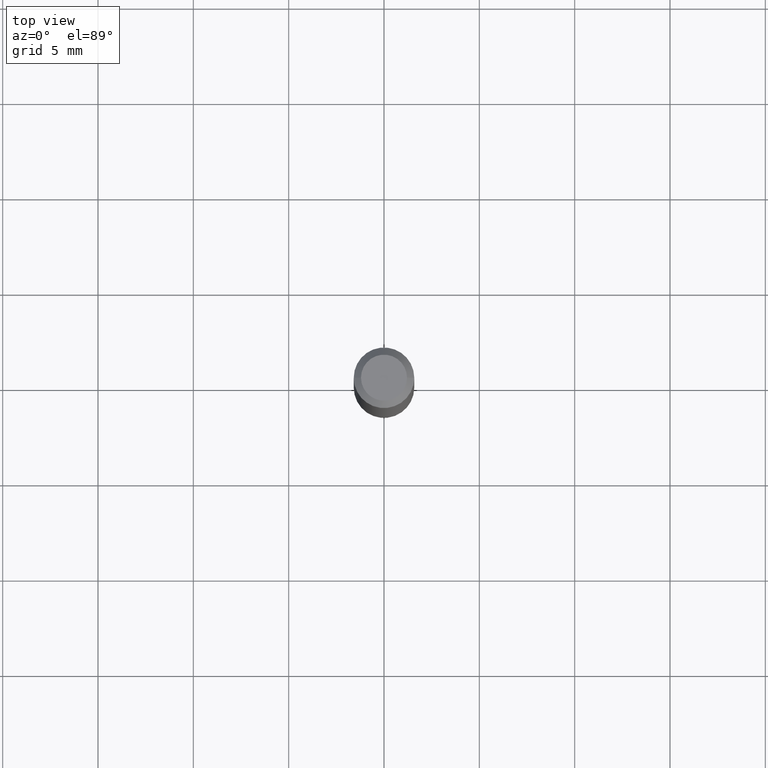
[diagram: clean part render]
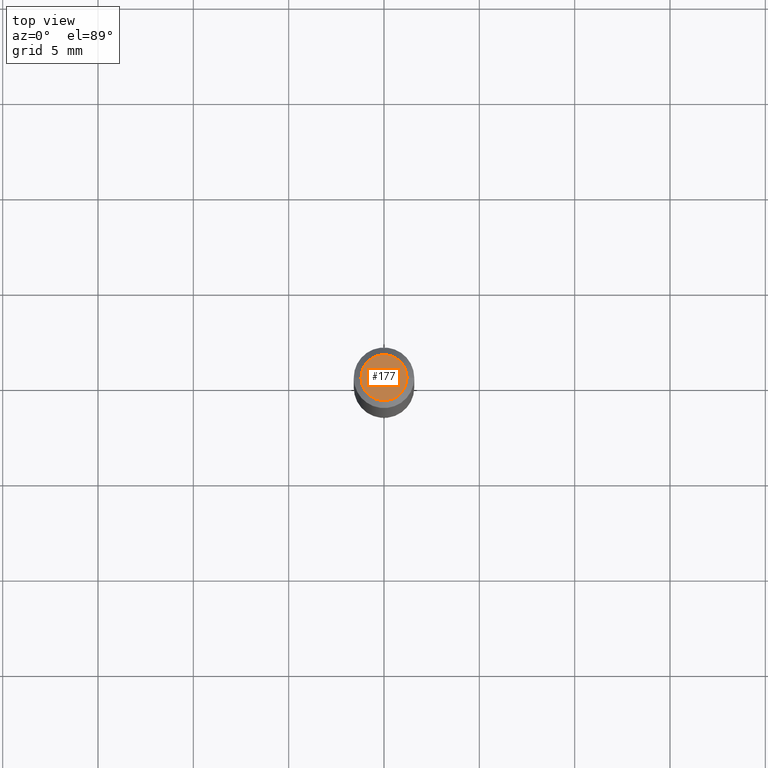
[diagram: same view with one face highlighted and labeled with its STEP entity id]
A machine part, top view. The second image highlights one B-rep face of the part: STEP entity #177.
In plain terms, the highlighted planar face has unit normal (0, -0, -1).
Its self-contained STEP definition (entity closure, byte-faithful):
#4 = CIRCLE ( 'NONE', #36, 0.04749999999999999362 ) ;
#10 = DIRECTION ( 'NONE',  ( -2.445468806185136597E-29, 3.491481338843145583E-15, 1.000000000000000000 ) ) ;
#36 = AXIS2_PLACEMENT_3D ( 'NONE', #74, #37, #397 ) ;
#37 = DIRECTION ( 'NONE',  ( -2.445468806185136597E-29, 3.491481338843145583E-15, 1.000000000000000000 ) ) ;
#43 = CARTESIAN_POINT ( 'NONE',  ( 8.901864651713830245E-45, -1.270950348405846147E-30, -3.640146473837256732E-16 ) ) ;
#74 = CARTESIAN_POINT ( 'NONE',  ( 8.901864651713830245E-45, -1.270950348405846147E-30, -3.640146473837256732E-16 ) ) ;
#78 = EDGE_CURVE ( 'NONE', #159, #120, #235, .T. ) ;
#96 = CARTESIAN_POINT ( 'NONE',  ( 0.04749999999999999362, -4.035134999187585033E-16, -3.640146473837231094E-16 ) ) ;
#120 = VERTEX_POINT ( 'NONE', #96 ) ;
#146 = AXIS2_PLACEMENT_3D ( 'NONE', #43, #10, #186 ) ;
#159 = VERTEX_POINT ( 'NONE', #241 ) ;
#161 = PLANE ( 'NONE',  #441 ) ;
#177 = ADVANCED_FACE ( 'NONE', ( #354 ), #161, .F. ) ;
#186 = DIRECTION ( 'NONE',  ( 1.000000000000000000, -6.982962677686267499E-15, 4.852736867747366768E-29 ) ) ;
#235 = CIRCLE ( 'NONE', #146, 0.04749999999999999362 ) ;
#241 = CARTESIAN_POINT ( 'NONE',  ( -0.04749999999999999362, 3.578768372314204096E-16, -3.640146473837280891E-16 ) ) ;
#245 = DIRECTION ( 'NONE',  ( -1.000000000000000000, 6.982962677686265922E-15, -4.876176775795935793E-29 ) ) ;
#306 = DIRECTION ( 'NONE',  ( 2.438088387897960049E-29, -3.491481338843145188E-15, -1.000000000000000000 ) ) ;
#354 = FACE_OUTER_BOUND ( 'NONE', #413, .T. ) ;
#397 = DIRECTION ( 'NONE',  ( 1.000000000000000000, -6.982962677686267499E-15, 4.852736867747366768E-29 ) ) ;
#413 = EDGE_LOOP ( 'NONE', ( #446, #445 ) ) ;
#441 = AXIS2_PLACEMENT_3D ( 'NONE', #459, #306, #245 ) ;
#445 = ORIENTED_EDGE ( 'NONE', *, *, #465, .T. ) ;
#446 = ORIENTED_EDGE ( 'NONE', *, *, #78, .T. ) ;
#459 = CARTESIAN_POINT ( 'NONE',  ( 3.316907271900976096E-16, 0.04749999999999999362, -3.478526872869121837E-16 ) ) ;
#465 = EDGE_CURVE ( 'NONE', #120, #159, #4, .T. ) ;